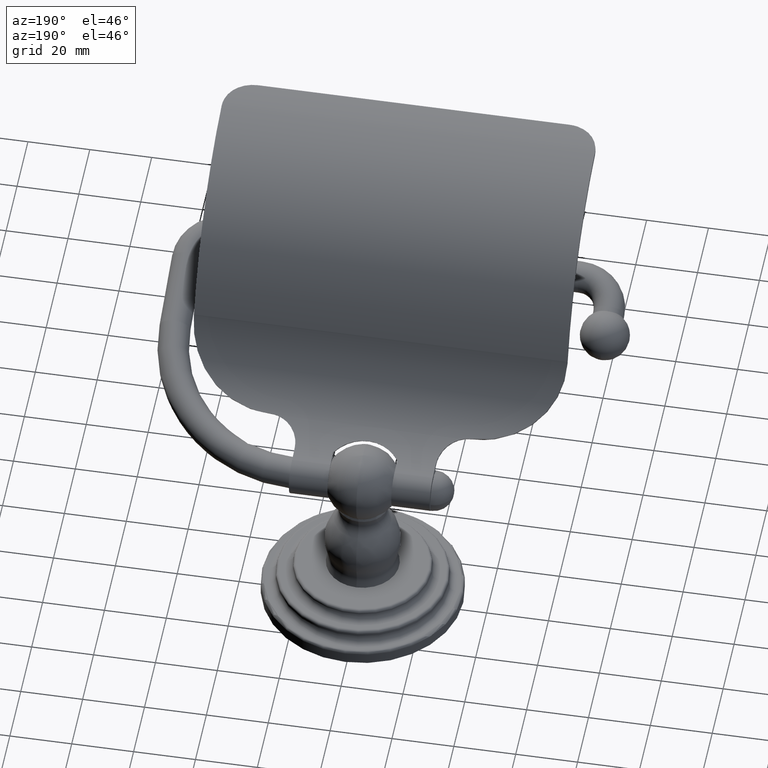
[diagram: clean part render]
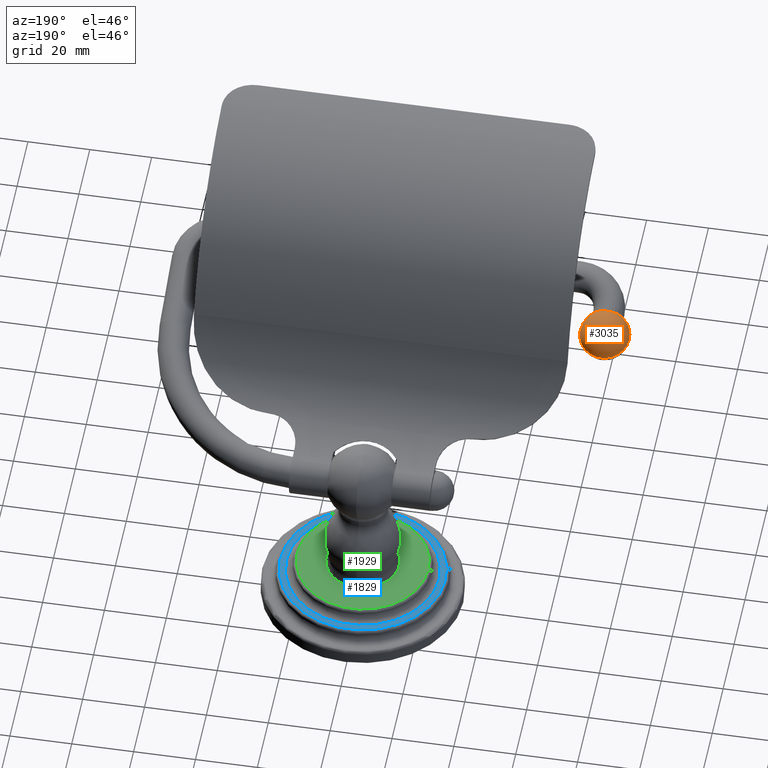
[diagram: same view with three faces highlighted in distinct colors, each labeled with its STEP entity id]
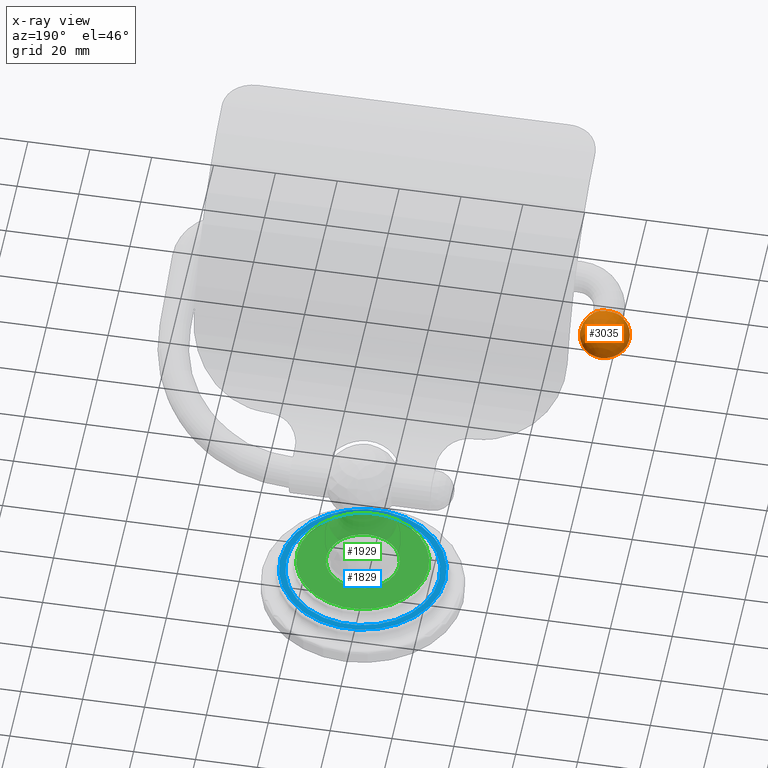
[diagram: x-ray of the same camera — body ghosted, the three highlighted faces saturated]
A machine part, auxiliary view with three faces highlighted in distinct colors.
The next image is the same camera in x-ray (body ghosted, the three faces saturated) — at least one of them is partly hidden behind the body in this view.
Their STEP definitions:

[orange] entity #3035 — the highlighted spherical surface has radius 8.001 mm.
#1378=CARTESIAN_POINT('',(-2.683E0,-2.257141675128E0,2.768532384268E0));
#1379=DIRECTION('',(0.E0,3.420201433257E-1,9.396926207859E-1));
#1380=DIRECTION('',(6.253968253968E-1,-7.332486073349E-1,2.668806673871E-1));
#1381=AXIS2_PLACEMENT_3D('',#1378,#1379,#1380);
#1383=CARTESIAN_POINT('',(-2.683E0,-2.257141675128E0,2.768532384268E0));
#1384=DIRECTION('',(0.E0,-3.420201433257E-1,-9.396926207859E-1));
#1385=DIRECTION('',(-6.253968253968E-1,-7.332486073349E-1,2.668806673871E-1));
#1386=AXIS2_PLACEMENT_3D('',#1383,#1384,#1385);
#1388=CARTESIAN_POINT('',(-2.683E0,-2.488114986438E0,2.852599794495E0));
#1389=DIRECTION('',(0.E0,9.396926207859E-1,-3.420201433257E-1));
#1390=DIRECTION('',(-1.E0,0.E0,0.E0));
#1391=AXIS2_PLACEMENT_3D('',#1388,#1389,#1390);
#1526=CARTESIAN_POINT('',(-2.88E0,-2.488114986438E0,2.852599794495E0));
#1527=CARTESIAN_POINT('',(-2.486E0,-2.488114986438E0,2.852599794495E0));
#1528=VERTEX_POINT('',#1526);
#1529=VERTEX_POINT('',#1527);
#1530=CARTESIAN_POINT('',(-2.683E0,-1.961138499580E0,2.660796039121E0));
#1531=VERTEX_POINT('',#1530);
#3024=CARTESIAN_POINT('',(-2.683E0,-2.257141675128E0,2.768532384268E0));
#3025=DIRECTION('',(0.E0,-9.396926207859E-1,3.420201433257E-1));
#3026=DIRECTION('',(-1.E0,0.E0,0.E0));
#3027=AXIS2_PLACEMENT_3D('',#3024,#3025,#3026);
#3028=SPHERICAL_SURFACE('',#3027,3.15E-1);
#3030=ORIENTED_EDGE('',*,*,#3029,.F.);
#3031=ORIENTED_EDGE('',*,*,#3019,.T.);
#3032=ORIENTED_EDGE('',*,*,#3017,.F.);
#3033=EDGE_LOOP('',(#3030,#3031,#3032));
#3034=FACE_OUTER_BOUND('',#3033,.F.);
#3035=ADVANCED_FACE('',(#3034),#3028,.T.);
#1382=CIRCLE('',#1381,3.15E-1);
#1387=CIRCLE('',#1386,3.15E-1);
#1392=CIRCLE('',#1391,1.97E-1);
#3017=EDGE_CURVE('',#1529,#1531,#1382,.T.);
#3019=EDGE_CURVE('',#1528,#1531,#1387,.T.);
#3029=EDGE_CURVE('',#1528,#1529,#1392,.T.);

[blue] entity #1829 — the highlighted planar face has unit normal (0, 0, 1).
#85=CARTESIAN_POINT('',(1.229081020560E-14,0.E0,3.62E-1));
#86=DIRECTION('',(0.E0,0.E0,1.E0));
#87=DIRECTION('',(1.E0,0.E0,0.E0));
#88=AXIS2_PLACEMENT_3D('',#85,#86,#87);
#90=CARTESIAN_POINT('',(1.229081020560E-14,0.E0,3.62E-1));
#91=DIRECTION('',(0.E0,0.E0,1.E0));
#92=DIRECTION('',(-1.E0,0.E0,0.E0));
#93=AXIS2_PLACEMENT_3D('',#90,#91,#92);
#123=CARTESIAN_POINT('',(1.229081020560E-14,0.E0,3.62E-1));
#124=DIRECTION('',(0.E0,0.E0,-1.E0));
#125=DIRECTION('',(1.E0,0.E0,0.E0));
#126=AXIS2_PLACEMENT_3D('',#123,#124,#125);
#133=CARTESIAN_POINT('',(1.229081020560E-14,0.E0,3.62E-1));
#134=DIRECTION('',(0.E0,0.E0,1.E0));
#135=DIRECTION('',(1.E0,0.E0,0.E0));
#136=AXIS2_PLACEMENT_3D('',#133,#134,#135);
#1440=CARTESIAN_POINT('',(9.72E-1,0.E0,3.62E-1));
#1442=VERTEX_POINT('',#1440);
#1448=CARTESIAN_POINT('',(-9.72E-1,0.E0,3.62E-1));
#1450=VERTEX_POINT('',#1448);
#1460=CARTESIAN_POINT('',(1.052E0,0.E0,3.62E-1));
#1461=CARTESIAN_POINT('',(-1.052E0,0.E0,3.62E-1));
#1462=VERTEX_POINT('',#1460);
#1463=VERTEX_POINT('',#1461);
#1813=CARTESIAN_POINT('',(1.229081020560E-14,0.E0,3.62E-1));
#1814=DIRECTION('',(0.E0,0.E0,1.E0));
#1815=DIRECTION('',(1.E0,0.E0,0.E0));
#1816=AXIS2_PLACEMENT_3D('',#1813,#1814,#1815);
#1817=PLANE('',#1816);
#1818=ORIENTED_EDGE('',*,*,#1803,.F.);
#1820=ORIENTED_EDGE('',*,*,#1819,.F.);
#1821=EDGE_LOOP('',(#1818,#1820));
#1822=FACE_OUTER_BOUND('',#1821,.F.);
#1824=ORIENTED_EDGE('',*,*,#1823,.F.);
#1826=ORIENTED_EDGE('',*,*,#1825,.T.);
#1827=EDGE_LOOP('',(#1824,#1826));
#1828=FACE_BOUND('',#1827,.F.);
#1829=ADVANCED_FACE('',(#1822,#1828),#1817,.T.);
#89=CIRCLE('',#88,1.052E0);
#94=CIRCLE('',#93,1.052E0);
#127=CIRCLE('',#126,9.72E-1);
#137=CIRCLE('',#136,9.72E-1);
#1803=EDGE_CURVE('',#1462,#1463,#89,.T.);
#1819=EDGE_CURVE('',#1463,#1462,#94,.T.);
#1823=EDGE_CURVE('',#1442,#1450,#127,.T.);
#1825=EDGE_CURVE('',#1442,#1450,#137,.T.);

[green] entity #1929 — the highlighted planar face has unit normal (0, 0, -1).
#148=CARTESIAN_POINT('',(1.230917990759E-14,0.E0,5.12E-1));
#149=DIRECTION('',(0.E0,0.E0,1.E0));
#150=DIRECTION('',(1.E0,0.E0,0.E0));
#151=AXIS2_PLACEMENT_3D('',#148,#149,#150);
#158=CARTESIAN_POINT('',(0.E0,0.E0,5.12E-1));
#159=DIRECTION('',(0.E0,0.E0,1.E0));
#160=DIRECTION('',(0.E0,-1.E0,0.E0));
#161=AXIS2_PLACEMENT_3D('',#158,#159,#160);
#163=CARTESIAN_POINT('',(0.E0,0.E0,5.12E-1));
#164=DIRECTION('',(0.E0,0.E0,1.E0));
#165=DIRECTION('',(0.E0,1.E0,0.E0));
#166=AXIS2_PLACEMENT_3D('',#163,#164,#165);
#168=CARTESIAN_POINT('',(1.230917990759E-14,0.E0,5.12E-1));
#169=DIRECTION('',(0.E0,0.E0,1.E0));
#170=DIRECTION('',(-1.E0,0.E0,0.E0));
#171=AXIS2_PLACEMENT_3D('',#168,#169,#170);
#1476=CARTESIAN_POINT('',(8.35E-1,0.E0,5.12E-1));
#1477=CARTESIAN_POINT('',(-8.35E-1,0.E0,5.12E-1));
#1478=VERTEX_POINT('',#1476);
#1479=VERTEX_POINT('',#1477);
#1498=CARTESIAN_POINT('',(0.E0,-4.64E-1,5.12E-1));
#1499=CARTESIAN_POINT('',(0.E0,4.64E-1,5.12E-1));
#1500=VERTEX_POINT('',#1498);
#1501=VERTEX_POINT('',#1499);
#1913=CARTESIAN_POINT('',(-5.E-1,1.774594738293E-1,5.12E-1));
#1914=DIRECTION('',(0.E0,0.E0,-1.E0));
#1915=DIRECTION('',(0.E0,1.E0,0.E0));
#1916=AXIS2_PLACEMENT_3D('',#1913,#1914,#1915);
#1917=PLANE('',#1916);
#1918=ORIENTED_EDGE('',*,*,#1903,.F.);
#1920=ORIENTED_EDGE('',*,*,#1919,.F.);
#1921=EDGE_LOOP('',(#1918,#1920));
#1922=FACE_OUTER_BOUND('',#1921,.F.);
#1924=ORIENTED_EDGE('',*,*,#1923,.T.);
#1926=ORIENTED_EDGE('',*,*,#1925,.T.);
#1927=EDGE_LOOP('',(#1924,#1926));
#1928=FACE_BOUND('',#1927,.F.);
#1929=ADVANCED_FACE('',(#1922,#1928),#1917,.F.);
#152=CIRCLE('',#151,8.35E-1);
#162=CIRCLE('',#161,4.64E-1);
#167=CIRCLE('',#166,4.64E-1);
#172=CIRCLE('',#171,8.35E-1);
#1903=EDGE_CURVE('',#1478,#1479,#152,.T.);
#1919=EDGE_CURVE('',#1479,#1478,#172,.T.);
#1923=EDGE_CURVE('',#1500,#1501,#162,.T.);
#1925=EDGE_CURVE('',#1501,#1500,#167,.T.);